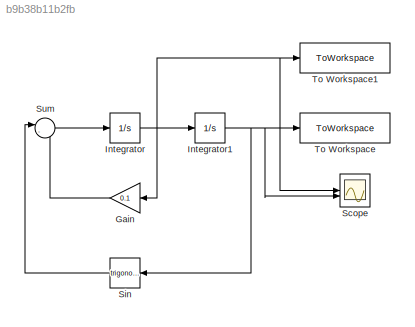
MODEL slx_b9b38b11b2fb
KIND model
CONFIG AbsTol = 1e-3
CONFIG EnableMultiTasking = off
CONFIG FixedStep = 0.1
CONFIG MaxStep = auto
CONFIG MinStep = auto
CONFIG RelTol = 1e-3
CONFIG SampleTimeConstraint = Unconstrained
CONFIG SolverName = ode1
CONFIG StartTime = 0.0
CONFIG StopTime = 50
BLOCK [Gain] Gain
  Gain = 0.1
  NameLocation = top
BLOCK [Integrator] Integrator
BLOCK [Integrator] Integrator1
  InitialCondition = 1
BLOCK [Scope] Scope
  ActiveDisplayYMaximum = 1.6645965401013969
  ActiveDisplayYMinimum = -1.6780033867316853
  ContainerLayout = {"WindowBounds":[1,1292,1918,836]}
  Floating = off
  GraphicalSettings = {"AxesScalingProperties":{"AlignXAxis":"Center","AlignYAxis":"Center","AutoScaleXAxisLimits":false,"AxesScaling":"Manual","AxesScalingNumUpdates":10,"ExpandOnly":true,"ScaleAxesLimitsAtStop":false,"XAxisDataRange":100,"YAxisDataRange":80},"DisplayProperties":{"ColorOrder":["auto","auto","auto","auto","auto","auto","auto","auto","auto","auto","auto","auto","auto","auto","auto","auto","auto","auto",...<+2033ch>
  MultipleDisplayCache = [{"MaxYLimMag":1,"MaxYLimReal":1.6645965401013969,"MinYLimMag":0,"MinYLimReal":-1.6780033867316853,"PlotAsMagnitudePhase":false,"ShowGrid":true,"ShowLegend":true,"Title":"%<SignalLabel>","YLabel":""}]
  NumInputPorts = 2
  ShowLegend = on
  Visible = on
  WasSavedAsWebScope = on
  WindowPosition = [892.000000,13.000000,641.000000,768.000000,]
BLOCK [Trigonometry] Sin
  NameLocation = top
BLOCK [Sum] Sum
  Inputs = |--
BLOCK [ToWorkspace] To Workspace
  Commented = on
  FixptAsFi = on
  MaxDataPoints = inf
  SampleTime = -1
  SaveFormat = Timeseries
  VariableName = simout
BLOCK [ToWorkspace] To Workspace1
  Commented = on
  FixptAsFi = on
  MaxDataPoints = inf
  SampleTime = -1
  SaveFormat = Timeseries
  VariableName = simout1
LINE Gain:1 -> Sum:2
NET Integrator1:1 -> Scope:2, Sin:1, To Workspace:1
NET Integrator:1 -> Gain:1, Integrator1:1, Scope:1, To Workspace1:1
LINE Sin:1 -> Sum:1
LINE Sum:1 -> Integrator:1
note: NET lines group one-source signal fan-out (src -> all destinations, sorted); 1:1 wires keep LINE
